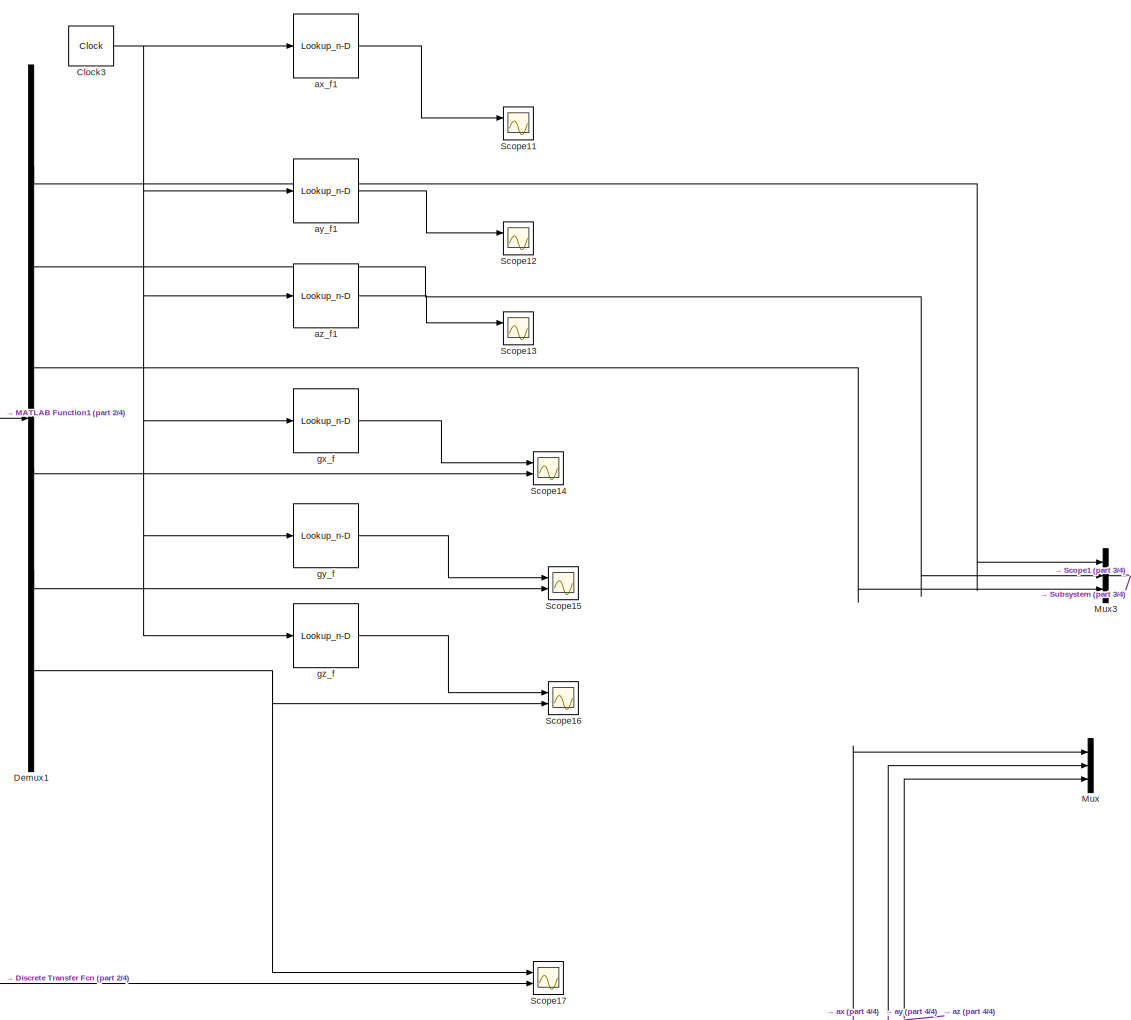
[diagram: root canvas - part 1/4, top center region]
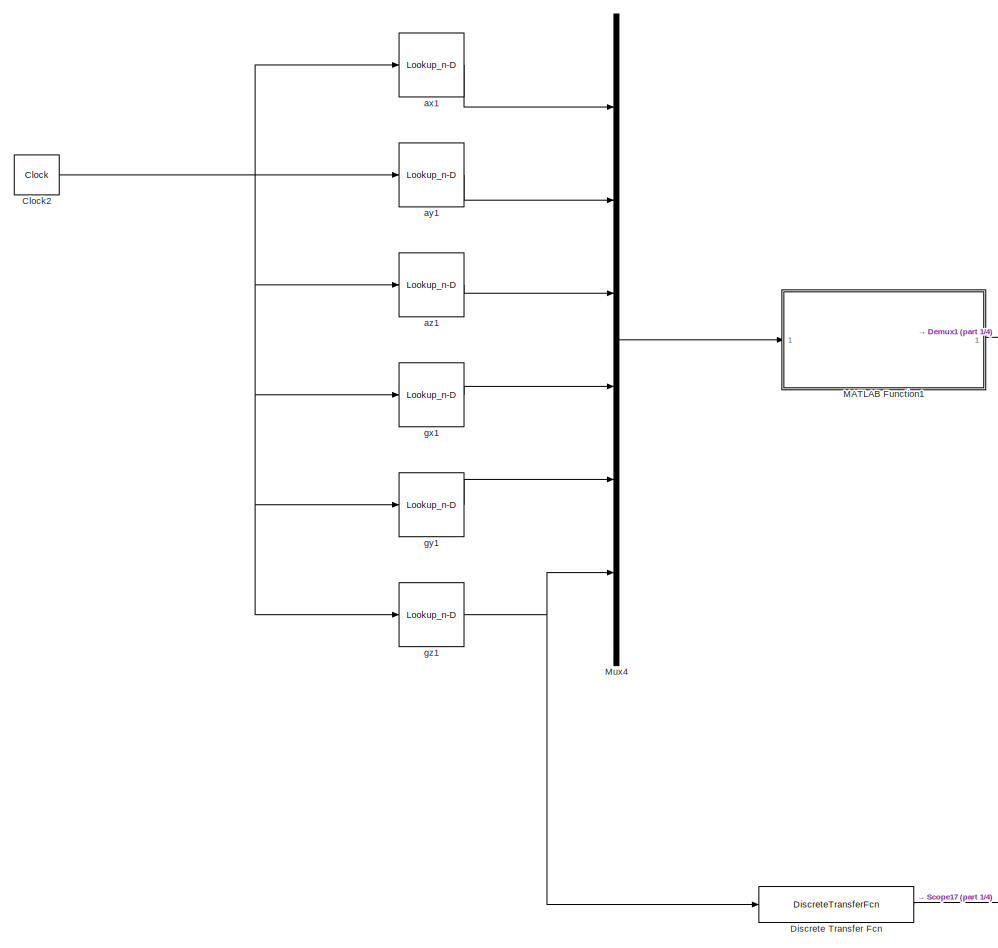
[diagram: root canvas - part 2/4, top left region]
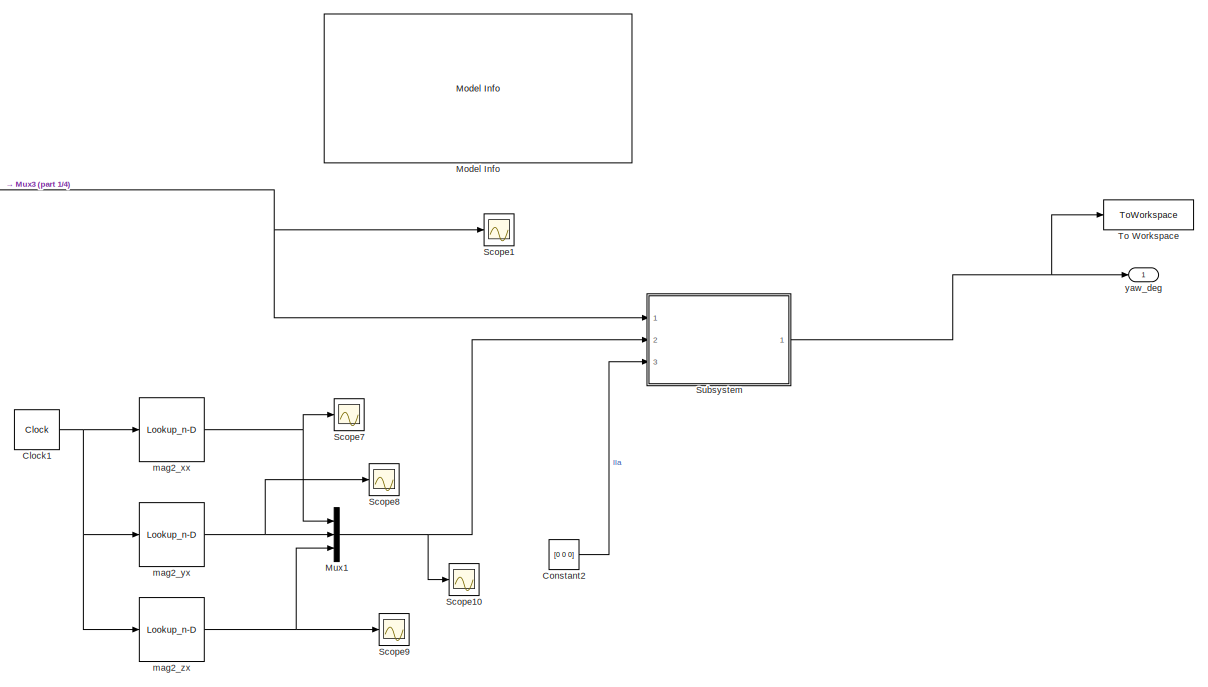
[diagram: root canvas - part 3/4, middle right region]
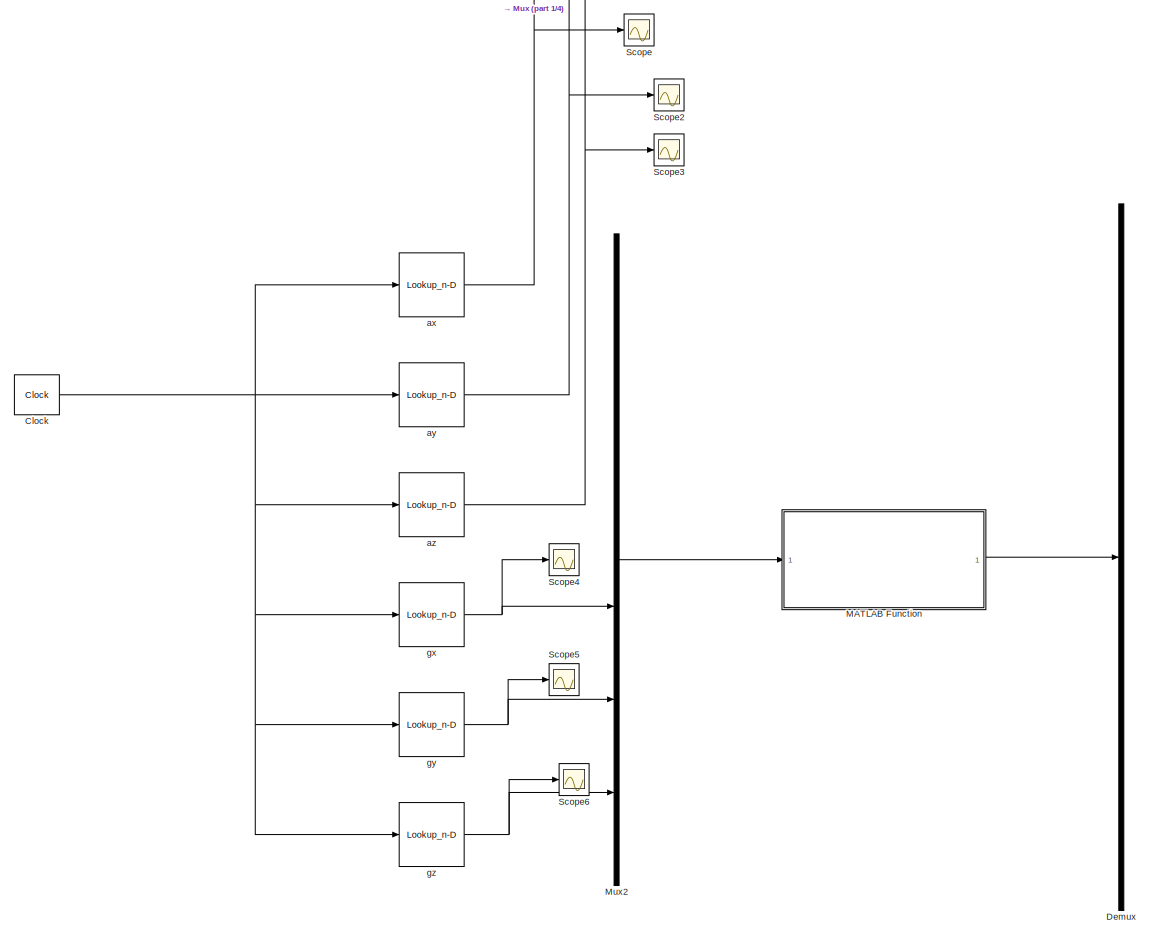
[diagram: root canvas - part 4/4, bottom center region]
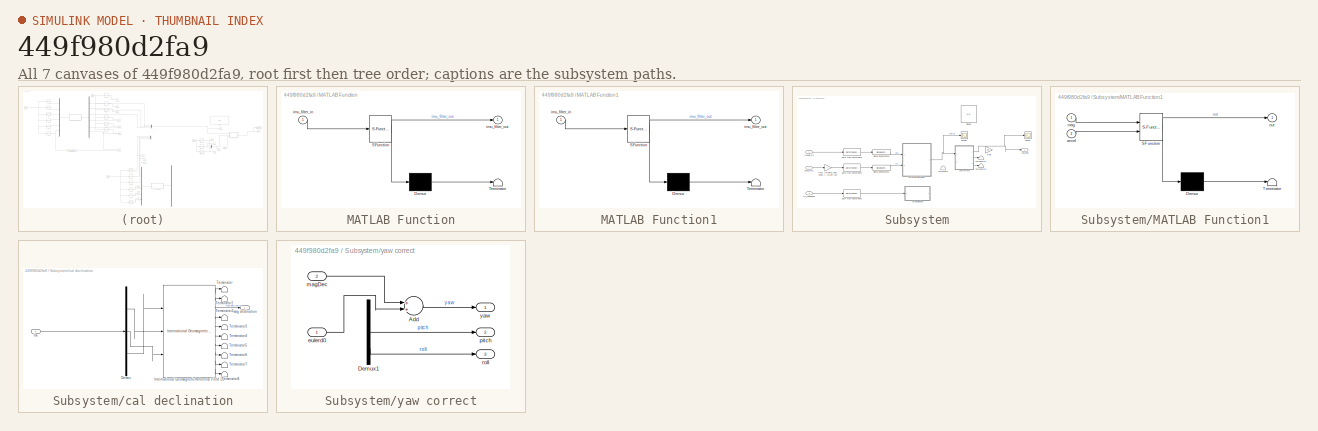
[diagram: thumbnail index - all 7 canvases of the model, root first then tree order]
MODEL slx_449f980d2fa9
KIND model
CONFIG AbsTol = auto
CONFIG EnableMultiTasking = off
CONFIG FixedStep = auto
CONFIG MaxStep = auto
CONFIG MinStep = auto
CONFIG RelTol = 1e-3
CONFIG SampleTimeConstraint = Unconstrained
CONFIG Solver = FixedStepDiscrete
CONFIG SolverName = FixedStepDiscrete
CONFIG StartTime = 0.0
CONFIG StopTime = 10
BLOCK [Clock] Clock
  Decimation = 1
BLOCK [Clock] Clock1
  Decimation = 1
BLOCK [Clock] Clock2
  Decimation = 1
BLOCK [Clock] Clock3
  Decimation = 1
BLOCK [Constant] Constant2
  Value = [0 0 0]
BLOCK [Demux] Demux
  DisplayOption = bar
  Outputs = 6
  Ports = [1, 6]
BLOCK [Demux] Demux1
  DisplayOption = bar
  Outputs = 6
  Ports = [1, 6]
BLOCK [DiscreteTransferFcn] Discrete Transfer Fcn
  Denominator = ftz.den{1:end}
  InputPortMap = u0
  Numerator = ftz.num{1:end}
  Ports = [1, 1]
BLOCK [SubSystem] MATLAB Function
  ErrorFcn = Stateflow.Translate.translate
  PermitHierarchicalResolution = ExplicitOnly
  Ports = [1, 1]
  RequestExecContextInheritance = off
  SFBlockType = MATLAB Function
  TreatAsAtomicUnit = on
BLOCK [Demux] MATLAB Function/ Demux 
  Outputs = 1
  Ports = [1, 1]
BLOCK [S-Function] MATLAB Function/ SFunction 
  EnableBusSupport = on
  FunctionName = sf_sfun
  PortCounts = [1 2]
  Ports = [1, 2]
  SFcnIsStateOwnerBlock = off
  SFunctionDeploymentMode = off
  Tag = Stateflow S-Function 2
BLOCK [Terminator] MATLAB Function/ Terminator 
BLOCK [Inport] MATLAB Function/imu_filter_in
  IconDisplay = Port number
BLOCK [Outport] MATLAB Function/imu_filter_out
  IconDisplay = Port number
  VectorParamsAs1DForOutWhenUnconnected = off
BLOCK [SubSystem] MATLAB Function1
  ErrorFcn = Stateflow.Translate.translate
  PermitHierarchicalResolution = ExplicitOnly
  Ports = [1, 1]
  RequestExecContextInheritance = off
  SFBlockType = MATLAB Function
  TreatAsAtomicUnit = on
BLOCK [Demux] MATLAB Function1/ Demux 
  Outputs = 1
  Ports = [1, 1]
BLOCK [S-Function] MATLAB Function1/ SFunction 
  EnableBusSupport = on
  FunctionName = sf_sfun
  PortCounts = [1 2]
  Ports = [1, 2]
  SFcnIsStateOwnerBlock = off
  SFunctionDeploymentMode = off
  Tag = Stateflow S-Function 1
BLOCK [Terminator] MATLAB Function1/ Terminator 
BLOCK [Inport] MATLAB Function1/imu_filter_in
  IconDisplay = Port number
BLOCK [Outport] MATLAB Function1/imu_filter_out
  IconDisplay = Port number
  VectorParamsAs1DForOutWhenUnconnected = off
BLOCK [Reference] Model Info  REF=simulink/Model-Wide
Utilities/Model Info
  Ports = []
  SourceBlock = simulink/Model-Wide\nUtilities/Model Info
  SourceProductBaseCode = SL
  SourceProductName = Simulink
  SourceType = CMBlock
BLOCK [Mux] Mux
  DisplayOption = bar
  Inputs = 3
  Ports = [3, 1]
BLOCK [Mux] Mux1
  DisplayOption = bar
  Inputs = 3
  Ports = [3, 1]
BLOCK [Mux] Mux2
  DisplayOption = bar
  Inputs = 6
  Ports = [6, 1]
BLOCK [Mux] Mux3
  DisplayOption = bar
  Inputs = 3
  Ports = [3, 1]
BLOCK [Mux] Mux4
  DisplayOption = bar
  Inputs = 6
  Ports = [6, 1]
BLOCK [Scope] Scope
  Floating = off
  NumInputPorts = 1
  Ports = [1]
  ScopeSpecificationString = Simulink.scopes.TimeScopeBlockCfg('CurrentConfiguration', extmgr.ConfigurationSet(extmgr.Configuration('Core','General UI',true),extmgr.Configuration('Core','Source UI',true),extmgr.Configuration('Sources','WiredSimulink',true,'DataLoggingVariableName','ScopeData2'),extmgr.Configuration('Visuals','Time Domain',true,'SerializedDisplays',{struct('MinYLimReal','-187.12214','MaxYLimReal','1663.40341',...<+1432ch>
BLOCK [Scope] Scope1
  Floating = off
  NumInputPorts = 1
  Ports = [1]
  ScopeSpecificationString = Simulink.scopes.TimeScopeBlockCfg('CurrentConfiguration', extmgr.ConfigurationSet(extmgr.Configuration('Core','General UI',true),extmgr.Configuration('Core','Source UI',true),extmgr.Configuration('Sources','WiredSimulink',true,'DataLoggingVariableName','ScopeData1'),extmgr.Configuration('Visuals','Time Domain',true,'SerializedDisplays',{struct('MinYLimReal','-24.35509','MaxYLimReal','9.63463','YLa...<+1519ch>
BLOCK [Scope] Scope10
  Floating = off
  NumInputPorts = 1
  Ports = [1]
  ScopeSpecificationString = Simulink.scopes.TimeScopeBlockCfg('CurrentConfiguration', extmgr.ConfigurationSet(extmgr.Configuration('Core','General UI',true),extmgr.Configuration('Core','Source UI',true),extmgr.Configuration('Sources','WiredSimulink',true,'DataLoggingVariableName','ScopeData11'),extmgr.Configuration('Visuals','Time Domain',true,'SerializedDisplays',{struct('MinYLimReal','-210.4141','MaxYLimReal','63.062','YLa...<+2802ch>
BLOCK [Scope] Scope11
  Floating = off
  NumInputPorts = 2
  Ports = [2]
  ScopeSpecificationString = Simulink.scopes.TimeScopeBlockCfg('CurrentConfiguration', extmgr.ConfigurationSet(extmgr.Configuration('Core','General UI',true),extmgr.Configuration('Core','Source UI',true),extmgr.Configuration('Sources','WiredSimulink',true,'DataLoggingVariableName','ScopeData2'),extmgr.Configuration('Visuals','Time Domain',true,'SerializedDisplays',{struct('MinYLimReal','-2.36294','MaxYLimReal','1.99764','YLab...<+1473ch>
BLOCK [Scope] Scope12
  Floating = off
  NumInputPorts = 2
  Ports = [2]
  ScopeSpecificationString = Simulink.scopes.TimeScopeBlockCfg('CurrentConfiguration', extmgr.ConfigurationSet(extmgr.Configuration('Core','General UI',true),extmgr.Configuration('Core','Source UI',true),extmgr.Configuration('Sources','WiredSimulink',true,'DataLoggingVariableName','ScopeData3'),extmgr.Configuration('Visuals','Time Domain',true,'SerializedDisplays',{struct('MinYLimReal','-1.56658','MaxYLimReal','2.24926','YLab...<+1475ch>
BLOCK [Scope] Scope13
  Floating = off
  NumInputPorts = 2
  Ports = [2]
  ScopeSpecificationString = Simulink.scopes.TimeScopeBlockCfg('CurrentConfiguration', extmgr.ConfigurationSet(extmgr.Configuration('Core','General UI',true),extmgr.Configuration('Core','Source UI',true),extmgr.Configuration('Sources','WiredSimulink',true,'DataLoggingVariableName','ScopeData4'),extmgr.Configuration('Visuals','Time Domain',true,'SerializedDisplays',{struct('MinYLimReal','-13.6508','MaxYLimReal','0.10658','YLab...<+1475ch>
BLOCK [Scope] Scope14
  Floating = off
  NumInputPorts = 2
  Ports = [2]
  ScopeSpecificationString = Simulink.scopes.TimeScopeBlockCfg('CurrentConfiguration', extmgr.ConfigurationSet(extmgr.Configuration('Core','General UI',true),extmgr.Configuration('Core','Source UI',true),extmgr.Configuration('Sources','WiredSimulink',true,'DataLoggingVariableName','ScopeData5'),extmgr.Configuration('Visuals','Time Domain',true,'SerializedDisplays',{struct('MinYLimReal','-2.52109','MaxYLimReal','2.91506','YLab...<+1444ch>
BLOCK [Scope] Scope15
  Floating = off
  NumInputPorts = 2
  Ports = [2]
  ScopeSpecificationString = Simulink.scopes.TimeScopeBlockCfg('CurrentConfiguration', extmgr.ConfigurationSet(extmgr.Configuration('Core','General UI',true),extmgr.Configuration('Core','Source UI',true),extmgr.Configuration('Sources','WiredSimulink',true,'DataLoggingVariableName','ScopeData6'),extmgr.Configuration('Visuals','Time Domain',true,'SerializedDisplays',{struct('MinYLimReal','-5.18602','MaxYLimReal','5.92532','YLab...<+1373ch>
BLOCK [Scope] Scope16
  Floating = off
  NumInputPorts = 2
  Ports = [2]
  ScopeSpecificationString = Simulink.scopes.TimeScopeBlockCfg('CurrentConfiguration', extmgr.ConfigurationSet(extmgr.Configuration('Core','General UI',true),extmgr.Configuration('Core','Source UI',true),extmgr.Configuration('Sources','WiredSimulink',true,'DataLoggingVariableName','ScopeData7'),extmgr.Configuration('Visuals','Time Domain',true,'SerializedDisplays',{struct('MinYLimReal','-3.03373','MaxYLimReal','2.73043','YLab...<+1450ch>
BLOCK [Scope] Scope17
  Floating = off
  NumInputPorts = 2
  Ports = [2]
  ScopeSpecificationString = Simulink.scopes.TimeScopeBlockCfg('CurrentConfiguration', extmgr.ConfigurationSet(extmgr.Configuration('Core','General UI',true),extmgr.Configuration('Core','Source UI',true),extmgr.Configuration('Sources','WiredSimulink',true,'DataLoggingVariableName','ScopeData1'),extmgr.Configuration('Visuals','Time Domain',true,'SerializedDisplays',{struct('MinYLimReal','-11.79257','MaxYLimReal','8.80808','YLa...<+1518ch>
BLOCK [Scope] Scope2
  Floating = off
  NumInputPorts = 1
  Ports = [1]
  ScopeSpecificationString = Simulink.scopes.TimeScopeBlockCfg('CurrentConfiguration', extmgr.ConfigurationSet(extmgr.Configuration('Core','General UI',true),extmgr.Configuration('Core','Source UI',true),extmgr.Configuration('Sources','WiredSimulink',true,'DataLoggingVariableName','ScopeData3'),extmgr.Configuration('Visuals','Time Domain',true,'SerializedDisplays',{struct('MinYLimReal','-188.45934','MaxYLimReal','1659.301','Y...<+1424ch>
BLOCK [Scope] Scope3
  Floating = off
  NumInputPorts = 1
  Ports = [1]
  ScopeSpecificationString = Simulink.scopes.TimeScopeBlockCfg('CurrentConfiguration', extmgr.ConfigurationSet(extmgr.Configuration('Core','General UI',true),extmgr.Configuration('Core','Source UI',true),extmgr.Configuration('Sources','WiredSimulink',true,'DataLoggingVariableName','ScopeData4'),extmgr.Configuration('Visuals','Time Domain',true,'SerializedDisplays',{struct('MinYLimReal','-319.06439','MaxYLimReal','2633.63099',...<+1432ch>
BLOCK [Scope] Scope4
  Floating = off
  NumInputPorts = 1
  Ports = [1]
  ScopeSpecificationString = Simulink.scopes.TimeScopeBlockCfg('CurrentConfiguration', extmgr.ConfigurationSet(extmgr.Configuration('Core','General UI',true),extmgr.Configuration('Core','Source UI',true),extmgr.Configuration('Sources','WiredSimulink',true,'DataLoggingVariableName','ScopeData5'),extmgr.Configuration('Visuals','Time Domain',true,'SerializedDisplays',{struct('MinYLimReal','-21.38646','MaxYLimReal','20.32971','YL...<+1420ch>
BLOCK [Scope] Scope5
  Floating = off
  NumInputPorts = 1
  Ports = [1]
  ScopeSpecificationString = Simulink.scopes.TimeScopeBlockCfg('CurrentConfiguration', extmgr.ConfigurationSet(extmgr.Configuration('Core','General UI',true),extmgr.Configuration('Core','Source UI',true),extmgr.Configuration('Sources','WiredSimulink',true,'DataLoggingVariableName','ScopeData6'),extmgr.Configuration('Visuals','Time Domain',true,'SerializedDisplays',{struct('MinYLimReal','-21.38646','MaxYLimReal','20.32971','YL...<+1420ch>
BLOCK [Scope] Scope6
  Floating = off
  NumInputPorts = 1
  Ports = [1]
  ScopeSpecificationString = Simulink.scopes.TimeScopeBlockCfg('CurrentConfiguration', extmgr.ConfigurationSet(extmgr.Configuration('Core','General UI',true),extmgr.Configuration('Core','Source UI',true),extmgr.Configuration('Sources','WiredSimulink',true,'DataLoggingVariableName','ScopeData7'),extmgr.Configuration('Visuals','Time Domain',true,'SerializedDisplays',{struct('MinYLimReal','-21.38646','MaxYLimReal','20.32971','YL...<+1420ch>
BLOCK [Scope] Scope7
  Floating = off
  NumInputPorts = 1
  Ports = [1]
  ScopeSpecificationString = Simulink.scopes.TimeScopeBlockCfg('CurrentConfiguration', extmgr.ConfigurationSet(extmgr.Configuration('Core','General UI',true),extmgr.Configuration('Core','Source UI',true),extmgr.Configuration('Sources','WiredSimulink',true,'DataLoggingVariableName','ScopeData8'),extmgr.Configuration('Visuals','Time Domain',true,'SerializedDisplays',{struct('MinYLimReal','-36.34734','MaxYLimReal','4.40785','YLa...<+1423ch>
BLOCK [Scope] Scope8
  Floating = off
  NumInputPorts = 1
  Ports = [1]
  ScopeSpecificationString = Simulink.scopes.TimeScopeBlockCfg('CurrentConfiguration', extmgr.ConfigurationSet(extmgr.Configuration('Core','General UI',true),extmgr.Configuration('Core','Source UI',true),extmgr.Configuration('Sources','WiredSimulink',true,'DataLoggingVariableName','ScopeData9'),extmgr.Configuration('Visuals','Time Domain',true,'SerializedDisplays',{struct('MinYLimReal','-205.98414','MaxYLimReal','23.19231','Y...<+1431ch>
BLOCK [Scope] Scope9
  Floating = off
  NumInputPorts = 1
  Ports = [1]
  ScopeSpecificationString = Simulink.scopes.TimeScopeBlockCfg('CurrentConfiguration', extmgr.ConfigurationSet(extmgr.Configuration('Core','General UI',true),extmgr.Configuration('Core','Source UI',true),extmgr.Configuration('Sources','WiredSimulink',true,'DataLoggingVariableName','ScopeData10'),extmgr.Configuration('Visuals','Time Domain',true,'SerializedDisplays',{struct('MinYLimReal','-4.53853','MaxYLimReal','40.18694','YL...<+1424ch>
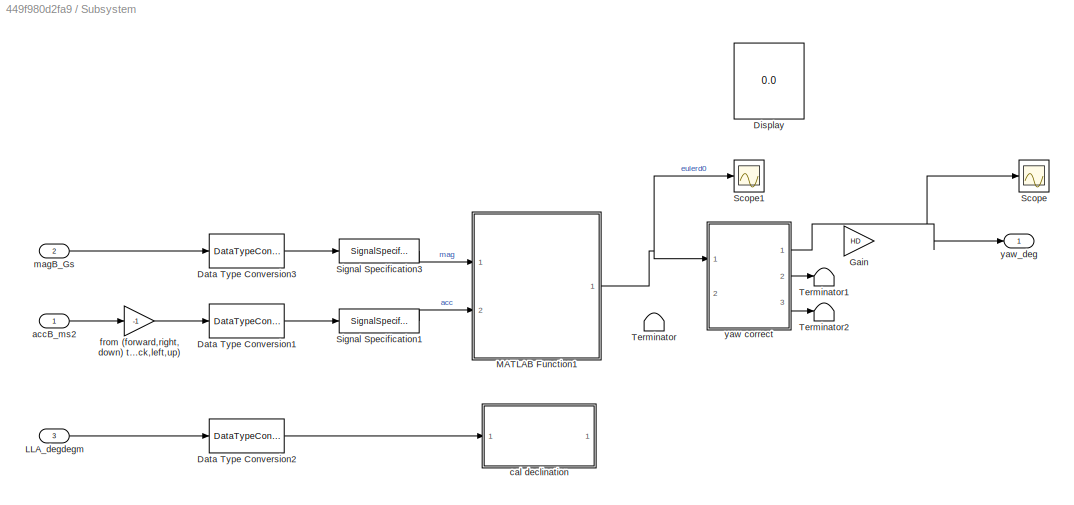
BLOCK [SubSystem] Subsystem
  Ports = [3, 1]
  RequestExecContextInheritance = off
BLOCK [DataTypeConversion] Subsystem/Data Type Conversion1
  OutDataTypeStr = double
  RndMeth = Floor
  SaturateOnIntegerOverflow = off
BLOCK [DataTypeConversion] Subsystem/Data Type Conversion2
  OutDataTypeStr = double
  RndMeth = Floor
  SaturateOnIntegerOverflow = off
BLOCK [DataTypeConversion] Subsystem/Data Type Conversion3
  OutDataTypeStr = double
  RndMeth = Floor
  SaturateOnIntegerOverflow = off
BLOCK [Display] Subsystem/Display
  Decimation = 1
  Ports = [1]
BLOCK [Gain] Subsystem/Gain
  Gain = HD
  OutDataTypeStr = Inherit: Inherit via internal rule
  ParamDataTypeStr = Inherit: Inherit via internal rule
  SaturateOnIntegerOverflow = off
BLOCK [Inport] Subsystem/LLA_degdegm
  IconDisplay = Port number
  Port = 3
  PortDimensions = [1,3]
BLOCK [SubSystem] Subsystem/MATLAB Function1
  ErrorFcn = Stateflow.Translate.translate
  PermitHierarchicalResolution = ExplicitOnly
  Ports = [2, 1]
  RequestExecContextInheritance = off
  SFBlockType = MATLAB Function
  TreatAsAtomicUnit = on
BLOCK [Demux] Subsystem/MATLAB Function1/ Demux 
  Outputs = 1
  Ports = [1, 1]
BLOCK [S-Function] Subsystem/MATLAB Function1/ SFunction 
  EnableBusSupport = on
  FunctionName = sf_sfun
  PortCounts = [2 2]
  Ports = [2, 2]
  SFcnIsStateOwnerBlock = off
  SFunctionDeploymentMode = off
  Tag = Stateflow S-Function 4
BLOCK [Terminator] Subsystem/MATLAB Function1/ Terminator 
BLOCK [Inport] Subsystem/MATLAB Function1/accel
  IconDisplay = Port number
  Port = 2
BLOCK [Inport] Subsystem/MATLAB Function1/mag
  IconDisplay = Port number
BLOCK [Outport] Subsystem/MATLAB Function1/out
  IconDisplay = Port number
BLOCK [Scope] Subsystem/Scope
  Floating = off
  NumInputPorts = 1
  Ports = [1]
  ScopeSpecificationString = Simulink.scopes.TimeScopeBlockCfg('CurrentConfiguration', extmgr.ConfigurationSet(extmgr.Configuration('Core','General UI',true),extmgr.Configuration('Core','Source UI',true),extmgr.Configuration('Sources','WiredSimulink',true),extmgr.Configuration('Visuals','Time Domain',true,'SerializedDisplays',{struct('MinYLimReal','-44.99996','MaxYLimReal','404.99994','YLabelReal','','MinYLimMag','0.00000','M...<+1391ch>
BLOCK [Scope] Subsystem/Scope1
  Floating = off
  NumInputPorts = 1
  Ports = [1]
  ScopeSpecificationString = Simulink.scopes.TimeScopeBlockCfg('CurrentConfiguration', extmgr.ConfigurationSet(extmgr.Configuration('Core','General UI',true),extmgr.Configuration('Core','Source UI',true),extmgr.Configuration('Sources','WiredSimulink',true,'DataLoggingVariableName','ScopeData12'),extmgr.Configuration('Visuals','Time Domain',true,'SerializedDisplays',{struct('MinYLimReal','-44.80452','MaxYLimReal','404.74729','...<+1476ch>
BLOCK [SignalSpecification] Subsystem/Signal Specification1
  Dimensions = [1,3]
BLOCK [SignalSpecification] Subsystem/Signal Specification3
  Dimensions = [1,3]
BLOCK [Terminator] Subsystem/Terminator
BLOCK [Terminator] Subsystem/Terminator1
BLOCK [Terminator] Subsystem/Terminator2
BLOCK [Inport] Subsystem/accB_ms2
  IconDisplay = Port number
  PortDimensions = [1,3]
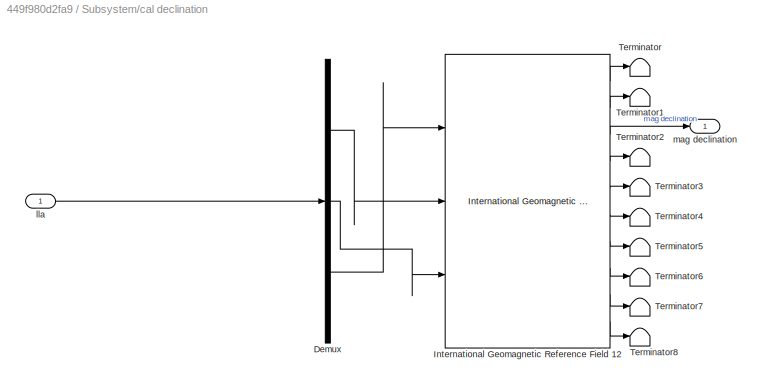
BLOCK [SubSystem] Subsystem/cal declination
  Ports = [1, 1]
  RequestExecContextInheritance = off
BLOCK [Demux] Subsystem/cal declination/Demux
  DisplayOption = bar
  Outputs = 3
  Ports = [1, 3]
BLOCK [Reference] Subsystem/cal declination/International Geomagnetic Reference Field 12  REF=aerolibgravity2/International Geomagnetic Reference Field 12
  Ports = [3, 10]
  SourceBlock = aerolibgravity2/International Geomagnetic Reference Field 12
  SourceProductBaseCode = AE
  SourceProductName = Aerospace Blockset
  SourceType = InternationalGeomagneticReferenceField12
BLOCK [Terminator] Subsystem/cal declination/Terminator
BLOCK [Terminator] Subsystem/cal declination/Terminator1
BLOCK [Terminator] Subsystem/cal declination/Terminator2
BLOCK [Terminator] Subsystem/cal declination/Terminator3
BLOCK [Terminator] Subsystem/cal declination/Terminator4
BLOCK [Terminator] Subsystem/cal declination/Terminator5
BLOCK [Terminator] Subsystem/cal declination/Terminator6
BLOCK [Terminator] Subsystem/cal declination/Terminator7
BLOCK [Terminator] Subsystem/cal declination/Terminator8
BLOCK [Inport] Subsystem/cal declination/lla
  IconDisplay = Port number
BLOCK [Outport] Subsystem/cal declination/mag declination
  IconDisplay = Port number
BLOCK [Gain] Subsystem/from (forward,right,down) to (back,left,up)
  Gain = -1
  OutDataTypeStr = Inherit: Inherit via internal rule
  ParamDataTypeStr = Inherit: Inherit via internal rule
  SaturateOnIntegerOverflow = off
BLOCK [Inport] Subsystem/magB_Gs
  IconDisplay = Port number
  Port = 2
  PortDimensions = [1,3]
BLOCK [SubSystem] Subsystem/yaw correct
  Ports = [2, 3]
  RequestExecContextInheritance = off
BLOCK [Sum] Subsystem/yaw correct/Add
  InputSameDT = off
  OutDataTypeStr = Inherit: Inherit via internal rule
  Ports = [2, 1]
  SaturateOnIntegerOverflow = off
BLOCK [Demux] Subsystem/yaw correct/Demux1
  DisplayOption = bar
  Outputs = 3
  Ports = [1, 3]
BLOCK [Inport] Subsystem/yaw correct/eulerd0
  IconDisplay = Port number
BLOCK [Inport] Subsystem/yaw correct/magDec
  IconDisplay = Port number
  Port = 2
BLOCK [Outport] Subsystem/yaw correct/pitch
  IconDisplay = Port number
  Port = 2
BLOCK [Outport] Subsystem/yaw correct/roll
  IconDisplay = Port number
  Port = 3
BLOCK [Outport] Subsystem/yaw correct/yaw
  IconDisplay = Port number
BLOCK [Outport] Subsystem/yaw_deg
  IconDisplay = Port number
BLOCK [ToWorkspace] To Workspace
  FixptAsFi = on
  MaxDataPoints = inf
  Ports = [1]
  SampleTime = -1
  VariableName = MAG_YAW
BLOCK [Lookup_n-D] ax
  BreakpointsForDimension1 = time_imu
  InternalRulePriority = Speed
  NumberOfTableDimensions = 1
  Ports = [1, 1]
  RndMeth = Simplest
  Table = ax
BLOCK [Lookup_n-D] ax1
  BreakpointsForDimension1 = time_imu
  InternalRulePriority = Speed
  NumberOfTableDimensions = 1
  Ports = [1, 1]
  RndMeth = Simplest
  Table = ax
BLOCK [Lookup_n-D] ax_f1
  BreakpointsForDimension1 = time_algo
  InternalRulePriority = Speed
  NumberOfTableDimensions = 1
  Ports = [1, 1]
  RndMeth = Simplest
  Table = ax_f
BLOCK [Lookup_n-D] ay
  BreakpointsForDimension1 = time_imu
  InternalRulePriority = Speed
  NumberOfTableDimensions = 1
  Ports = [1, 1]
  RndMeth = Simplest
  Table = ay
BLOCK [Lookup_n-D] ay1
  BreakpointsForDimension1 = time_imu
  InternalRulePriority = Speed
  NumberOfTableDimensions = 1
  Ports = [1, 1]
  RndMeth = Simplest
  Table = ay
BLOCK [Lookup_n-D] ay_f1
  BreakpointsForDimension1 = time_algo
  InternalRulePriority = Speed
  NumberOfTableDimensions = 1
  Ports = [1, 1]
  RndMeth = Simplest
  Table = ay_f
BLOCK [Lookup_n-D] az
  BreakpointsForDimension1 = time_imu
  InternalRulePriority = Speed
  NumberOfTableDimensions = 1
  Ports = [1, 1]
  RndMeth = Simplest
  Table = az
BLOCK [Lookup_n-D] az1
  BreakpointsForDimension1 = time_imu
  InternalRulePriority = Speed
  NumberOfTableDimensions = 1
  Ports = [1, 1]
  RndMeth = Simplest
  Table = az
BLOCK [Lookup_n-D] az_f1
  BreakpointsForDimension1 = time_algo
  InternalRulePriority = Speed
  NumberOfTableDimensions = 1
  Ports = [1, 1]
  RndMeth = Simplest
  Table = az_f
BLOCK [Lookup_n-D] gx
  BreakpointsForDimension1 = time_imu
  InternalRulePriority = Speed
  NumberOfTableDimensions = 1
  Ports = [1, 1]
  RndMeth = Simplest
  Table = gx
BLOCK [Lookup_n-D] gx1
  BreakpointsForDimension1 = time_imu
  InternalRulePriority = Speed
  NumberOfTableDimensions = 1
  Ports = [1, 1]
  RndMeth = Simplest
  Table = gx
BLOCK [Lookup_n-D] gx_f
  BreakpointsForDimension1 = time_algo
  InternalRulePriority = Speed
  NumberOfTableDimensions = 1
  Ports = [1, 1]
  RndMeth = Simplest
  Table = gx_f
BLOCK [Lookup_n-D] gy
  BreakpointsForDimension1 = time_imu
  InternalRulePriority = Speed
  NumberOfTableDimensions = 1
  Ports = [1, 1]
  RndMeth = Simplest
  Table = gy
BLOCK [Lookup_n-D] gy1
  BreakpointsForDimension1 = time_imu
  InternalRulePriority = Speed
  NumberOfTableDimensions = 1
  Ports = [1, 1]
  RndMeth = Simplest
  Table = gy
BLOCK [Lookup_n-D] gy_f
  BreakpointsForDimension1 = time_algo
  InternalRulePriority = Speed
  NumberOfTableDimensions = 1
  Ports = [1, 1]
  RndMeth = Simplest
  Table = gy_f
BLOCK [Lookup_n-D] gz
  BreakpointsForDimension1 = time_imu
  InternalRulePriority = Speed
  NumberOfTableDimensions = 1
  Ports = [1, 1]
  RndMeth = Simplest
  Table = gz
BLOCK [Lookup_n-D] gz1
  BreakpointsForDimension1 = time_imu
  InternalRulePriority = Speed
  NumberOfTableDimensions = 1
  Ports = [1, 1]
  RndMeth = Simplest
  Table = gz
BLOCK [Lookup_n-D] gz_f
  BreakpointsForDimension1 = time_algo
  InternalRulePriority = Speed
  NumberOfTableDimensions = 1
  Ports = [1, 1]
  RndMeth = Simplest
  Table = gz_f
BLOCK [Lookup_n-D] mag2_xx
  BreakpointsForDimension1 = time_mag
  InternalRulePriority = Speed
  NumberOfTableDimensions = 1
  Ports = [1, 1]
  RndMeth = Simplest
  Table = mag2_xx
BLOCK [Lookup_n-D] mag2_yx
  BreakpointsForDimension1 = time_mag
  InternalRulePriority = Speed
  NumberOfTableDimensions = 1
  Ports = [1, 1]
  RndMeth = Simplest
  Table = mag2_yx
BLOCK [Lookup_n-D] mag2_zx
  BreakpointsForDimension1 = time_mag
  InternalRulePriority = Speed
  NumberOfTableDimensions = 1
  Ports = [1, 1]
  RndMeth = Simplest
  Table = mag2_zx
BLOCK [Outport] yaw_deg
  IconDisplay = Port number
NET Clock1:1 -> mag2_xx:1, mag2_yx:1, mag2_zx:1
NET Clock2:1 -> ax1:1, ay1:1, az1:1, gx1:1, gy1:1, gz1:1
NET Clock3:1 -> ax_f1:1, ay_f1:1, az_f1:1, gx_f:1, gy_f:1, gz_f:1
NET Clock:1 -> ax:1, ay:1, az:1, gx:1, gy:1, gz:1
LINE Constant2:1 -> Subsystem:3
LINE Demux1:1 -> Mux3:1
LINE Demux1:2 -> Mux3:2
LINE Demux1:3 -> Mux3:3
LINE Demux1:4 -> Scope14:2
LINE Demux1:5 -> Scope15:2
NET Demux1:6 -> Scope16:2, Scope17:1
LINE Discrete Transfer Fcn:1 -> Scope17:2
LINE MATLAB Function1:1 -> Demux1:1
LINE MATLAB Function:1 -> Demux:1
NET Mux1:1 -> Scope10:1, Subsystem:2
LINE Mux2:1 -> MATLAB Function:1
NET Mux3:1 -> Scope1:1, Subsystem:1
LINE Mux4:1 -> MATLAB Function1:1
LINE Subsystem/Data Type Conversion1:1 -> Subsystem/Signal Specification1:1
LINE Subsystem/Data Type Conversion2:1 -> Subsystem/cal declination:1
LINE Subsystem/Data Type Conversion3:1 -> Subsystem/Signal Specification3:1
LINE Subsystem/LLA_degdegm:1 -> Subsystem/Data Type Conversion2:1
NET Subsystem/MATLAB Function1:1 -> Subsystem/Scope1:1, Subsystem/yaw correct:1
LINE Subsystem/Signal Specification1:1 -> Subsystem/MATLAB Function1:2
LINE Subsystem/Signal Specification3:1 -> Subsystem/MATLAB Function1:1
LINE Subsystem/accB_ms2:1 -> Subsystem/from (forward,right,down) to (back,left,up):1
LINE Subsystem/cal declination/Demux:1 -> Subsystem/cal declination/International Geomagnetic Reference Field 12:2
LINE Subsystem/cal declination/Demux:2 -> Subsystem/cal declination/International Geomagnetic Reference Field 12:3
LINE Subsystem/cal declination/Demux:3 -> Subsystem/cal declination/International Geomagnetic Reference Field 12:1
LINE Subsystem/cal declination/International Geomagnetic Reference Field 12:1 -> Subsystem/cal declination/Terminator:1
LINE Subsystem/cal declination/International Geomagnetic Reference Field 12:10 -> Subsystem/cal declination/Terminator8:1
LINE Subsystem/cal declination/International Geomagnetic Reference Field 12:2 -> Subsystem/cal declination/Terminator1:1
LINE Subsystem/cal declination/International Geomagnetic Reference Field 12:3 -> Subsystem/cal declination/mag declination:1
LINE Subsystem/cal declination/International Geomagnetic Reference Field 12:4 -> Subsystem/cal declination/Terminator2:1
LINE Subsystem/cal declination/International Geomagnetic Reference Field 12:5 -> Subsystem/cal declination/Terminator3:1
LINE Subsystem/cal declination/International Geomagnetic Reference Field 12:6 -> Subsystem/cal declination/Terminator4:1
LINE Subsystem/cal declination/International Geomagnetic Reference Field 12:7 -> Subsystem/cal declination/Terminator5:1
LINE Subsystem/cal declination/International Geomagnetic Reference Field 12:8 -> Subsystem/cal declination/Terminator6:1
LINE Subsystem/cal declination/International Geomagnetic Reference Field 12:9 -> Subsystem/cal declination/Terminator7:1
LINE Subsystem/cal declination/lla:1 -> Subsystem/cal declination/Demux:1
LINE Subsystem/from (forward,right,down) to (back,left,up):1 -> Subsystem/Data Type Conversion1:1
LINE Subsystem/magB_Gs:1 -> Subsystem/Data Type Conversion3:1
LINE Subsystem/yaw correct/Add:1 -> Subsystem/yaw correct/yaw:1
LINE Subsystem/yaw correct/Demux1:2 -> Subsystem/yaw correct/pitch:1
LINE Subsystem/yaw correct/Demux1:3 -> Subsystem/yaw correct/roll:1
LINE Subsystem/yaw correct/eulerd0:1 -> Subsystem/yaw correct/Add:2
LINE Subsystem/yaw correct/magDec:1 -> Subsystem/yaw correct/Add:1
NET Subsystem/yaw correct:1 -> Subsystem/Scope:1, Subsystem/yaw_deg:1
LINE Subsystem/yaw correct:2 -> Subsystem/Terminator1:1
LINE Subsystem/yaw correct:3 -> Subsystem/Terminator2:1
NET Subsystem:1 -> To Workspace:1, yaw_deg:1
LINE ax1:1 -> Mux4:1
NET ax:1 -> Mux:1, Scope:1
LINE ax_f1:1 -> Scope11:1
LINE ay1:1 -> Mux4:2
NET ay:1 -> Mux:2, Scope2:1
LINE ay_f1:1 -> Scope12:1
LINE az1:1 -> Mux4:3
NET az:1 -> Mux:3, Scope3:1
LINE az_f1:1 -> Scope13:1
LINE gx1:1 -> Mux4:4
NET gx:1 -> Mux2:4, Scope4:1
LINE gx_f:1 -> Scope14:1
LINE gy1:1 -> Mux4:5
NET gy:1 -> Mux2:5, Scope5:1
LINE gy_f:1 -> Scope15:1
NET gz1:1 -> Discrete Transfer Fcn:1, Mux4:6
NET gz:1 -> Mux2:6, Scope6:1
LINE gz_f:1 -> Scope16:1
NET mag2_xx:1 -> Mux1:1, Scope7:1
NET mag2_yx:1 -> Mux1:2, Scope8:1
NET mag2_zx:1 -> Mux1:3, Scope9:1
note: NET lines group one-source signal fan-out (src -> all destinations, sorted); 1:1 wires keep LINE
CHART MATLAB Function1 states=1 transitions=1
  STATE_LABEL 'eML_blk_kernel()'
  STATE_LABEL 'SCRIPT:\nfunction imu_filter_out = imu_filter(imu_filter_in)\n% ftz.num{1:end}\n% ftz.den{1:end}\n% persistent\npersistent imu_filter_in_buff\npersistent imu_filter_out_buff\n    if isempty(imu_filter_in_buff)\n        imu_filter_in_buff = zeros(3,6);\n    end\n    if isempty(imu_filter_out_buff)\n        imu_filter_out_buff = zeros(3,6);\n    end \n    \n    \n\nimu_filter_in_buff(1,:)=imu_filter_in_buff(2,:);\ni...<+589ch>'
CHART MATLAB Function states=1 transitions=1
  STATE_LABEL 'eML_blk_kernel()'
  STATE_LABEL 'SCRIPT:\nfunction imu_filter_out = imu_filter(imu_filter_in)\n% ftz.num{1:end}\n% ftz.den{1:end}\n% persistent\npersistent imu_filter_in_buff\npersistent imu_filter_out_buff\n    if isempty(imu_filter_in_buff)\n        imu_filter_in_buff = zeros(3,6);\n    end\n    if isempty(imu_filter_out_buff)\n        imu_filter_out_buff = zeros(3,6);\n    end \n    \n    \n\nimu_filter_in_buff(1,:)=imu_filter_in_buff(2,:);\ni...<+589ch>'
CHART Subsystem/MATLAB Function1 states=1 transitions=1
  STATE_LABEL 'eML_blk_kernel()'
  STATE_LABEL "SCRIPT:\nfunction out  = compass(mag,accel)\n    quat0 = zeros(1,4);\n    eulerd0 = zeros(1,3);\n    temp=ecompass(accel,mag);\n    quat0 = compact(temp);\n     eulerd0 = eulerd(quat0);\n%     eulerd0 = to_euler(quat0);\n    out=eulerd0(1);\n    \n    \n%     out=atan2(mag(2),mag(1));\n    if out<0\n    out=out+2*pi;\n    end\n    out=out*180/pi;\nend\n\n\nfunction eout = eulerd(quat)\n% rotate 'ZYX'\nqa = quat(1);\nqb...<+709ch>"
